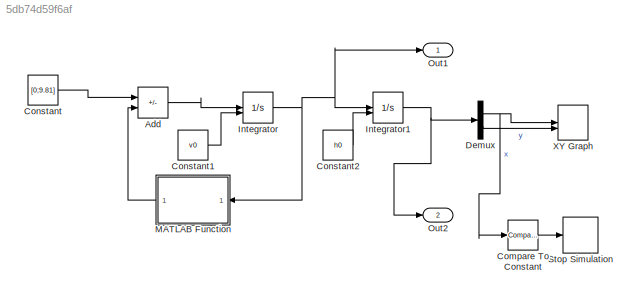
MODEL slx_5db74d59f6af
KIND model
CONFIG AbsTol = auto
CONFIG EnableMultiTasking = off
CONFIG FixedStep = auto
CONFIG MaxStep = auto
CONFIG MinStep = auto
CONFIG RelTol = 1e-6
CONFIG SampleTimeConstraint = Unconstrained
CONFIG SolverName = ode45
CONFIG StartTime = 0.0
CONFIG StopTime = inf
BLOCK [Sum] Add
  IconShape = rectangular
  Inputs = -+
BLOCK [Reference] Compare To Constant  REF=simulink/Logic and Bit
Operations/Compare
To Constant
  SourceBlock = simulink/Logic and Bit\nOperations/Compare\nTo Constant
  SourceType = Compare To Constant
BLOCK [Constant] Constant
  Value = [0;9.81]
BLOCK [Constant] Constant1
  Value = v0
BLOCK [Constant] Constant2
  Value = h0
BLOCK [Demux] Demux
  Outputs = 2
BLOCK [Integrator] Integrator
  InitialConditionSource = external
BLOCK [Integrator] Integrator1
  InitialConditionSource = external
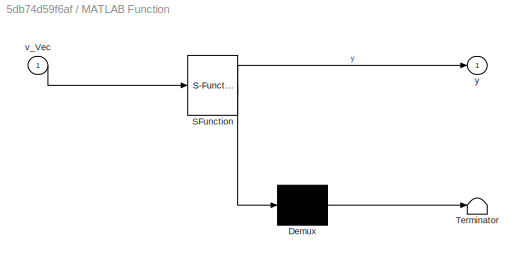
BLOCK [SubSystem] MATLAB Function
  ErrorFcn = Stateflow.Translate.translate
  PermitHierarchicalResolution = ExplicitOnly
  SFBlockType = MATLAB Function
  TreatAsAtomicUnit = on
BLOCK [Demux] MATLAB Function/ Demux 
  Outputs = 1
BLOCK [S-Function] MATLAB Function/ SFunction 
  EnableBusSupport = off
  FunctionName = sf_sfun
  PortCounts = [1 2]
  SFcnIsStateOwnerBlock = off
  SFunctionDeploymentMode = off
  Tag = Stateflow S-Function 2
BLOCK [Terminator] MATLAB Function/ Terminator 
BLOCK [Inport] MATLAB Function/v_Vec
BLOCK [Outport] MATLAB Function/y
BLOCK [Outport] Out1
  SignalName = Werte_vxy
BLOCK [Outport] Out2
  Port = 2
  SignalName = Werte_hxy
BLOCK [Stop] Stop Simulation
BLOCK [Record] XY Graph
  CompatibilityTag = XY
  FileSettingsInternal = {"entries":[{"content":{"excelSettings":{"content":{},"type":"Streamout.ExcelSettings"},"parquetSettings":{"content":{},"type":"Streamout.ParquetSettings"}},"type":"Streamout.FileSettingStorage","uuid":""}],"packageUris":["http:\/\/schema.mathworks.com\/mf0\/streamout_blocks\/R2020a"],"version":"1.0"}
  FrameSettings = [0, 0]
  Layout = [1 1]
  NumPorts = 2.0
  SignalsInternal = {"entries":[{"content":{"signals":[{"content":{"blockPath":[],"dimensions":[1],"domain":"","lineColor":"#a2142f","plots":[ 1 ],"port":1,"signalID":1,"signalName":"x"},"type":"RecordBlkView.Signal","uuid":""},{"content":{"blockPath":[],"dimensions":[1],"domain":"","lineColor":"#139fff","plots":[ 1 ],"port":2,"signalID":2,"signalName":"y"},"type":"RecordBlkView.Signal","uuid":""}]},"type":"RecordBlk...<+126ch>
  VisualizationBindings = {"xyplotplugin":{"info":[{"series":[{"bindingParametersList":[{"parameter":"X-Axis","signalID":1,"signalName":"x"},{"parameter":"Y-Axis","signalID":2,"signalName":"y"}],"seriesID":0}],"subplotID":1}]}}
  st = -1
LINE Add:1 -> Integrator:1
LINE Compare To Constant:1 -> Stop Simulation:1
LINE Constant1:1 -> Integrator:2
LINE Constant2:1 -> Integrator1:2
LINE Constant:1 -> Add:1
NET Demux:1 -> Compare To Constant:1, XY Graph:1
LINE Demux:2 -> XY Graph:2
NET Integrator1:1 -> Demux:1, Out2:1
NET Integrator:1 -> Integrator1:1, MATLAB Function:1, Out1:1
LINE MATLAB Function:1 -> Add:2
note: NET lines group one-source signal fan-out (src -> all destinations, sorted); 1:1 wires keep LINE
CHART MATLAB Function states=1 transitions=1
  STATE_LABEL 'eML_blk_kernel()'
  STATE_LABEL 'SCRIPT:\nfunction y = fcn(v_Vec)\nvair=[15;0];\nd=250*10^-6;\nrhoair=1.225;\nrhowater=1000;\nvrel=vair-v_Vec;\ncw=0.45;\n\nm=d^3*rhowater*pi/6;\nA=pi*d^2/4;\n\ny=1./(2*m)*rhoair*A*cw.*vrel.*abs(vrel);\n'
CHART  states=0 transitions=0
